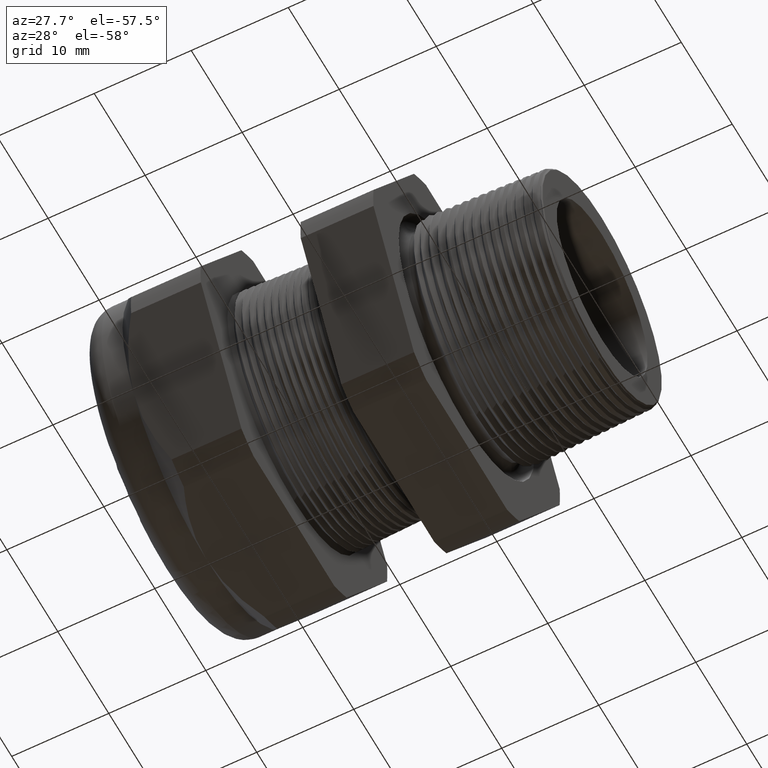
[diagram: clean part render]
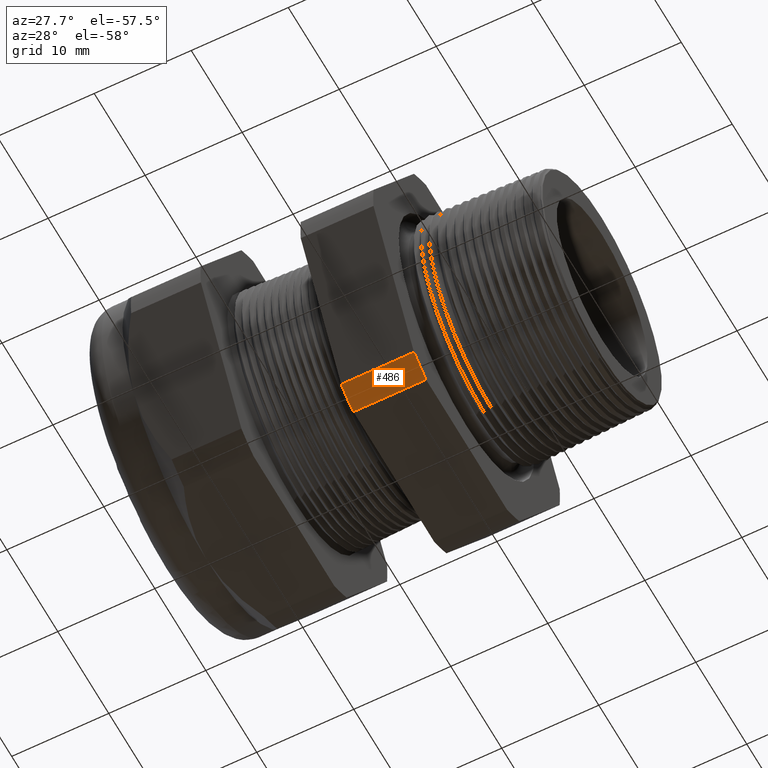
[diagram: same view with one face highlighted and labeled with its STEP entity id]
A machine part, auxiliary view. The second image highlights one B-rep face of the part: STEP entity #486.
In plain terms, the highlighted cylindrical surface (partial cylindrical patch) has radius 18.3261 mm, axis along (-1, 0, 0).
Its self-contained STEP definition (entity closure, byte-faithful):
#431 = EDGE_CURVE ( 'NONE', #3468, #5913, #2205, .T. ) ;
#432 = EDGE_LOOP ( 'NONE', ( #487, #488, #489, #491 ) ) ;
#486 = ADVANCED_FACE ( 'NONE', ( #2254 ), #2253, .T. ) ;
#487 = ORIENTED_EDGE ( 'NONE', *, *, #431, .T. ) ;
#488 = ORIENTED_EDGE ( 'NONE', *, *, #5906, .F. ) ;
#489 = ORIENTED_EDGE ( 'NONE', *, *, #490, .F. ) ;
#490 = EDGE_CURVE ( 'NONE', #3463, #3550, #2316, .T. ) ;
#491 = ORIENTED_EDGE ( 'NONE', *, *, #3465, .F. ) ;
#2202 = DIRECTION ( 'NONE',  ( -1.000000000000000000, 0.0000000000000000000, 0.0000000000000000000 ) ) ;
#2203 = VECTOR ( 'NONE', #2202, 39.37007874015748100 ) ;
#2204 = CARTESIAN_POINT ( 'NONE',  ( 0.2400000000000001900, -0.4063420493440881300, -0.5961949252843793400 ) ) ;
#2205 = LINE ( 'NONE', #2204, #2203 ) ;
#2253 = CYLINDRICAL_SURFACE ( 'NONE', #2320, 0.7215000000000000300 ) ;
#2254 = FACE_OUTER_BOUND ( 'NONE', #432, .T. ) ;
#2313 = DIRECTION ( 'NONE',  ( -1.000000000000000000, 0.0000000000000000000, 0.0000000000000000000 ) ) ;
#2314 = VECTOR ( 'NONE', #2313, 39.37007874015748100 ) ;
#2315 = CARTESIAN_POINT ( 'NONE',  ( 0.2400000000000001900, -0.3131489262315934100, -0.6500000000000001300 ) ) ;
#2316 = LINE ( 'NONE', #2315, #2314 ) ;
#2317 = DIRECTION ( 'NONE',  ( 0.0000000000000000000, 0.0000000000000000000, 1.000000000000000000 ) ) ;
#2318 = DIRECTION ( 'NONE',  ( -1.000000000000000000, 0.0000000000000000000, 0.0000000000000000000 ) ) ;
#2319 = CARTESIAN_POINT ( 'NONE',  ( 0.2400000000000001900, 0.0000000000000000000, 0.0000000000000000000 ) ) ;
#2320 = AXIS2_PLACEMENT_3D ( 'NONE', #2319, #2318, #2317 ) ;
#3463 = VERTEX_POINT ( 'NONE', #4082 ) ;
#3465 = EDGE_CURVE ( 'NONE', #3468, #3463, #4081, .T. ) ;
#3468 = VERTEX_POINT ( 'NONE', #4076 ) ;
#3550 = VERTEX_POINT ( 'NONE', #4183 ) ;
#4076 = CARTESIAN_POINT ( 'NONE',  ( -0.3100000000000000000, -0.4063420493440881300, -0.5961949252843793400 ) ) ;
#4077 = DIRECTION ( 'NONE',  ( 0.0000000000000000000, 0.0000000000000000000, -1.000000000000000000 ) ) ;
#4078 = DIRECTION ( 'NONE',  ( 1.000000000000000000, 0.0000000000000000000, 0.0000000000000000000 ) ) ;
#4079 = CARTESIAN_POINT ( 'NONE',  ( -0.3100000000000000000, 0.0000000000000000000, 0.0000000000000000000 ) ) ;
#4080 = AXIS2_PLACEMENT_3D ( 'NONE', #4079, #4078, #4077 ) ;
#4081 = CIRCLE ( 'NONE', #4080, 0.7215000000000000300 ) ;
#4082 = CARTESIAN_POINT ( 'NONE',  ( -0.3100000000000000000, -0.3131489262315934100, -0.6500000000000001300 ) ) ;
#4183 = CARTESIAN_POINT ( 'NONE',  ( -0.6052755905511810800, -0.3131489262315934100, -0.6500000000000001300 ) ) ;
#4842 = CARTESIAN_POINT ( 'NONE',  ( -0.6052755905511810800, -0.4063420493440881300, -0.5961949252843793400 ) ) ;
#4850 = DIRECTION ( 'NONE',  ( 0.0000000000000000000, 0.0000000000000000000, 1.000000000000000000 ) ) ;
#4851 = DIRECTION ( 'NONE',  ( -1.000000000000000000, 0.0000000000000000000, 0.0000000000000000000 ) ) ;
#4852 = CARTESIAN_POINT ( 'NONE',  ( -0.6052755905511810800, 0.0000000000000000000, 0.0000000000000000000 ) ) ;
#4853 = AXIS2_PLACEMENT_3D ( 'NONE', #4852, #4851, #4850 ) ;
#4854 = CIRCLE ( 'NONE', #4853, 0.7215000000000000300 ) ;
#5906 = EDGE_CURVE ( 'NONE', #3550, #5913, #4854, .T. ) ;
#5913 = VERTEX_POINT ( 'NONE', #4842 ) ;